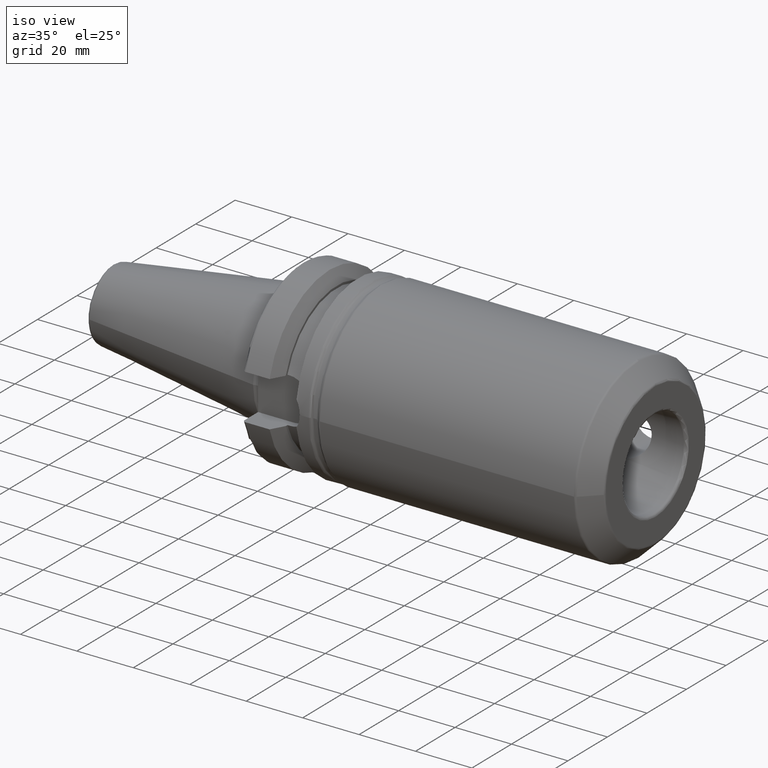
[diagram: clean part render]
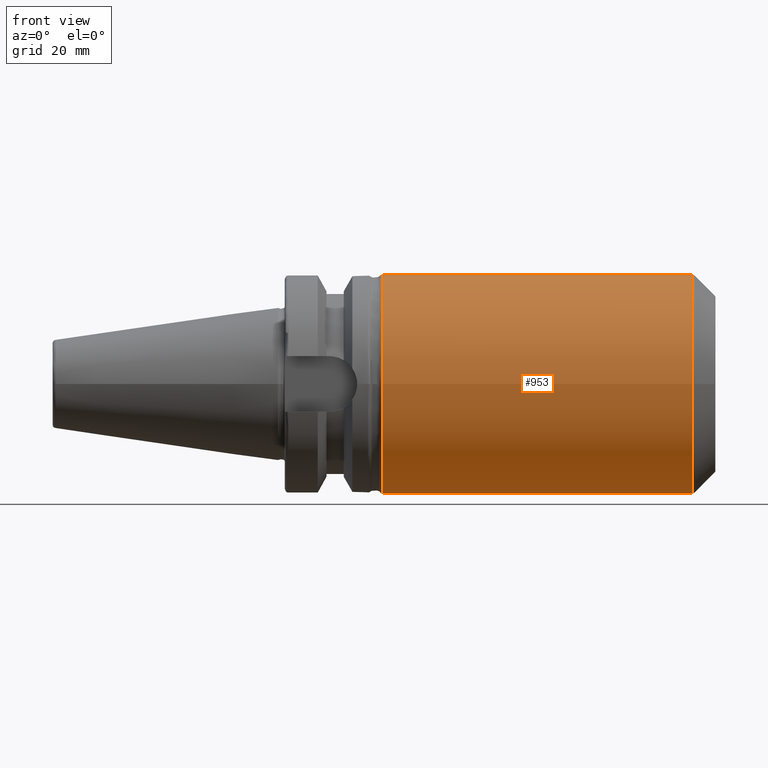
[diagram: tour spotlight — one face highlighted and labeled with its STEP entity id]
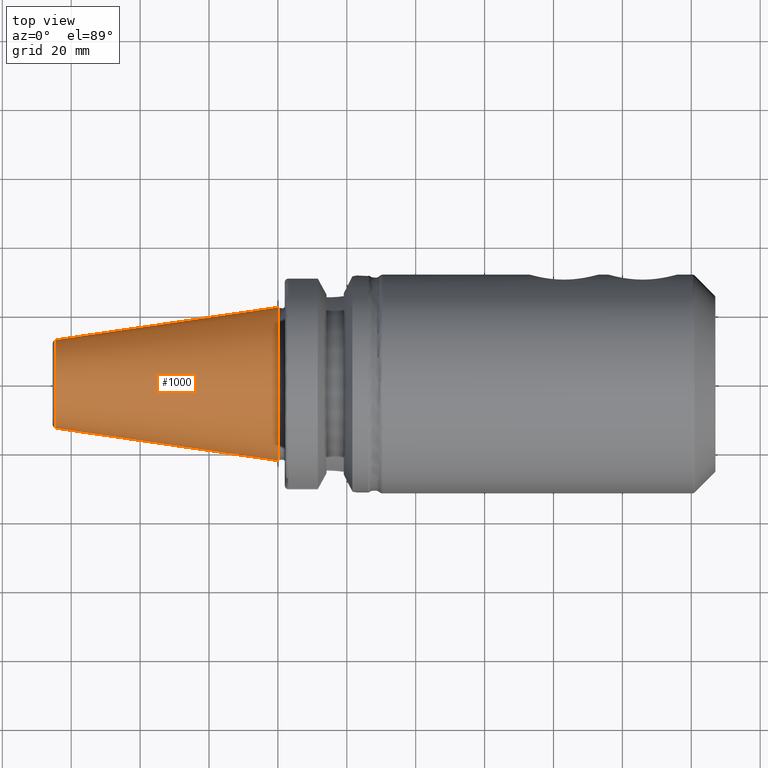
[diagram: tour spotlight — one face highlighted and labeled with its STEP entity id]
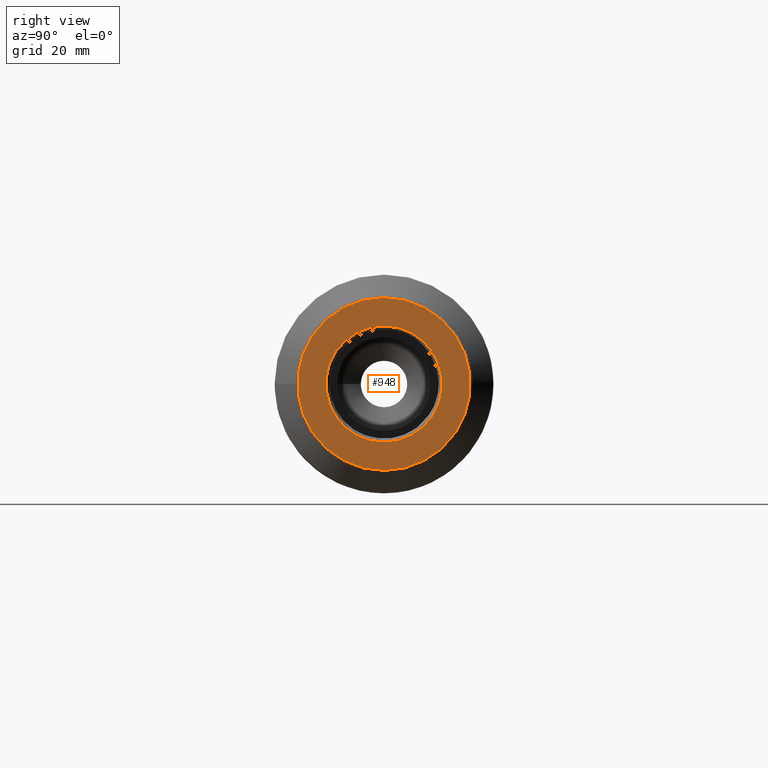
[diagram: tour spotlight — one face highlighted and labeled with its STEP entity id]
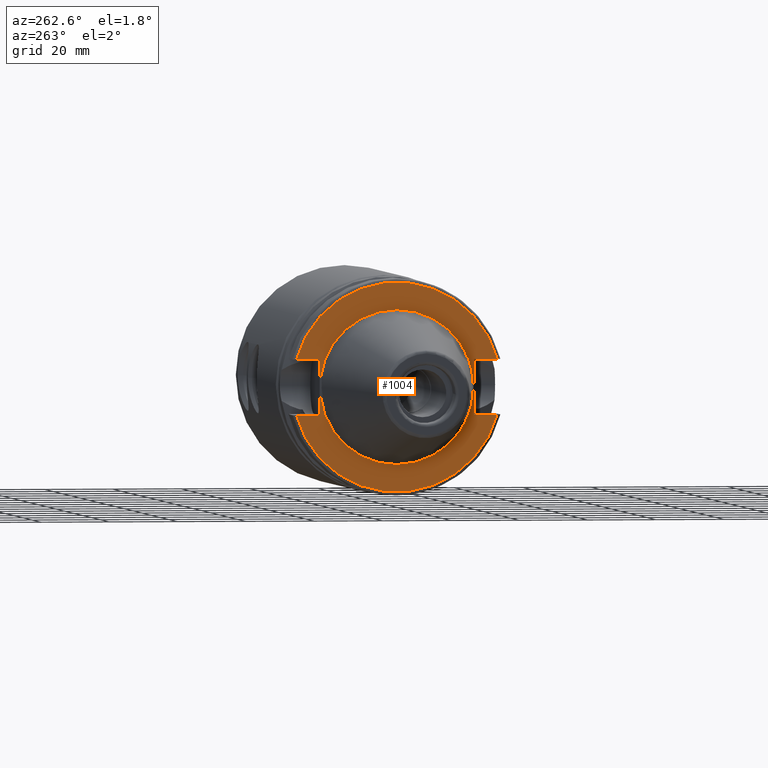
[diagram: tour spotlight — one face highlighted and labeled with its STEP entity id]
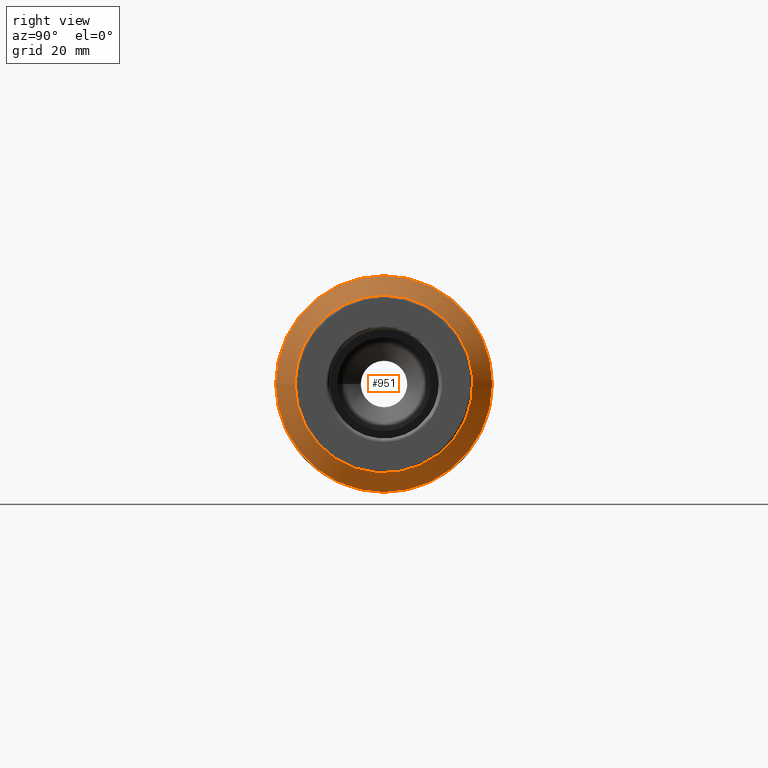
[diagram: tour spotlight — one face highlighted and labeled with its STEP entity id]
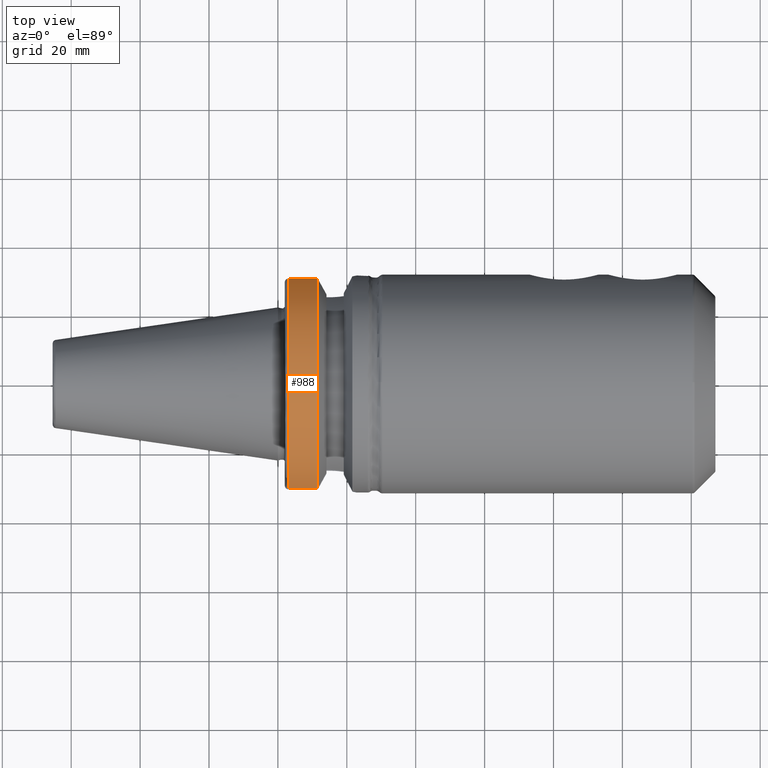
[diagram: tour spotlight — one face highlighted and labeled with its STEP entity id]
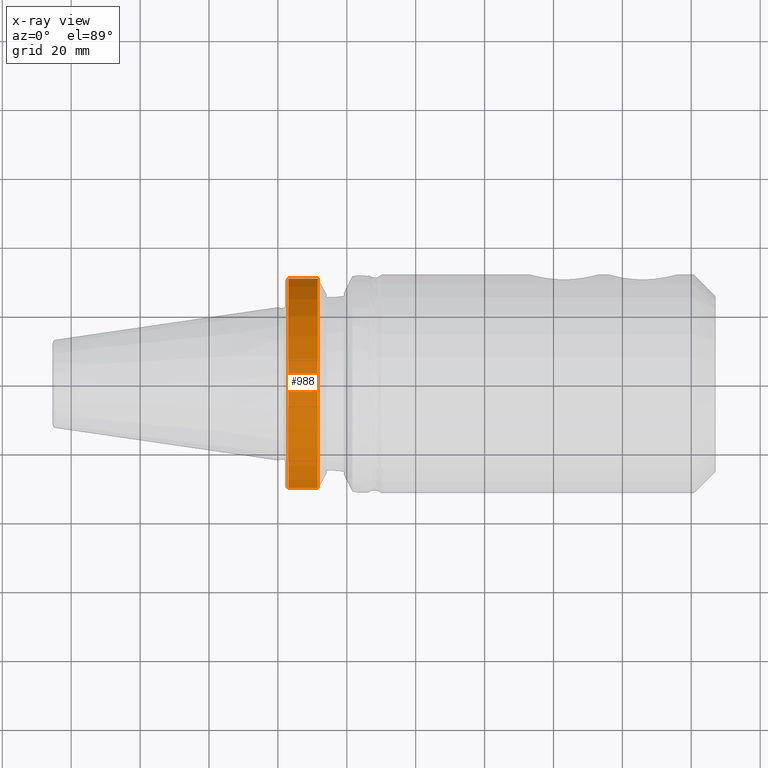
[diagram: x-ray of the same camera — body ghosted, this tour face saturated]
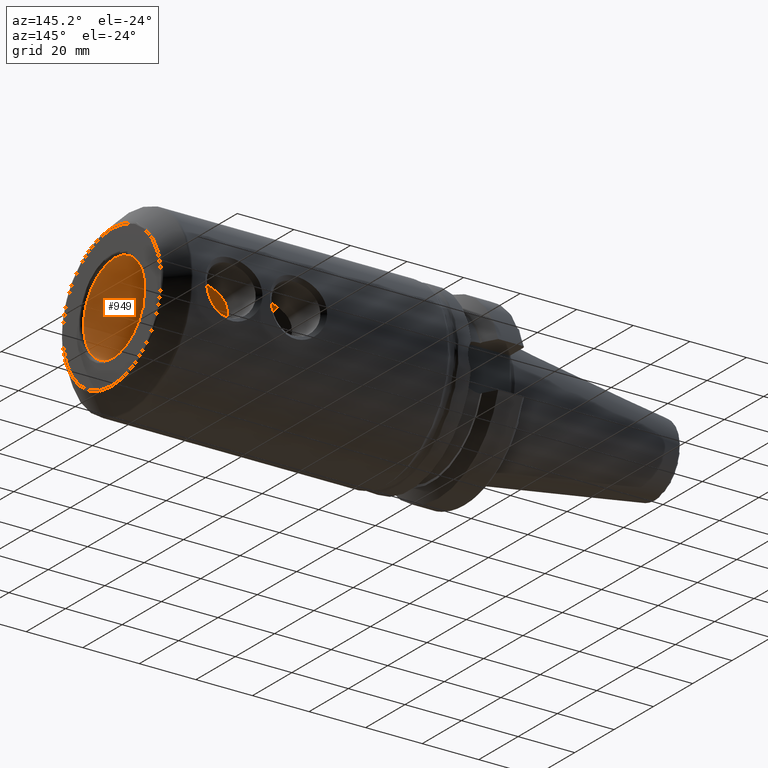
[diagram: tour spotlight — one face highlighted and labeled with its STEP entity id]
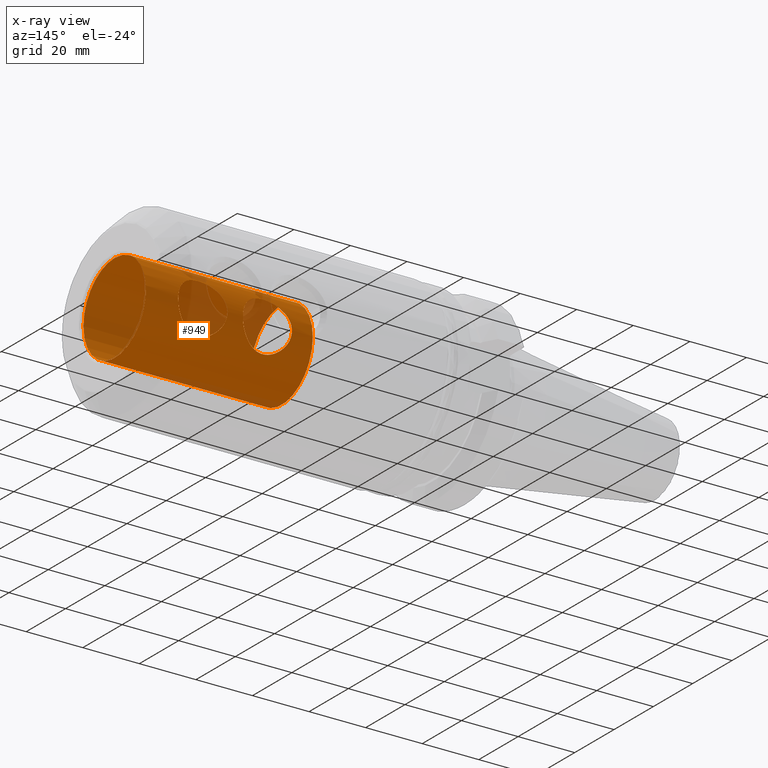
[diagram: x-ray of the same camera — body ghosted, this tour face saturated]
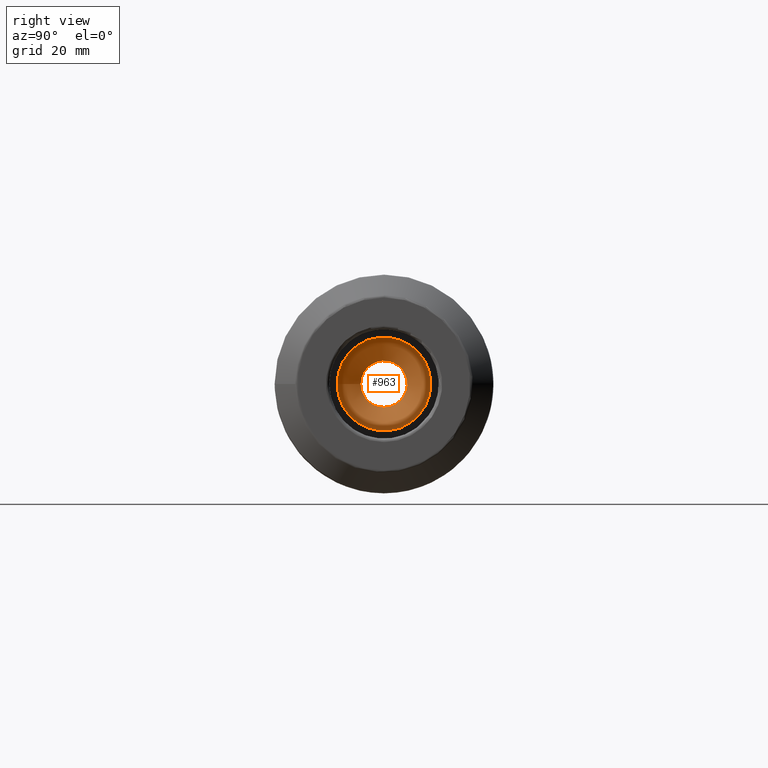
[diagram: tour spotlight — one face highlighted and labeled with its STEP entity id]
A machine part: a face-by-face anatomy tour. The part has 58 B-rep faces; the first image is the clean iso view, then the 8 largest visible faces are spotlighted one at a time (largest first), each with its STEP entity span.

Face 1 — front view, entity #953. In plain terms, the highlighted cylindrical surface (bore or boss wall) has radius 31.75 mm, axis along (1, 0, 0).
Definition (entity closure, byte-faithful):
#35=B_SPLINE_CURVE_WITH_KNOTS('',3,(#1578,#1579,#1580,#1581,#1582,#1583,
#1584,#1585,#1586,#1587,#1588,#1589,#1590,#1591,#1592,#1593,#1594,#1595,
#1596,#1597,#1598,#1599,#1600,#1601,#1602,#1603,#1604,#1605,#1606,#1607),
 .UNSPECIFIED.,.T.,.F.,(4,1,1,1,1,1,1,1,1,1,1,1,1,1,1,1,1,1,1,1,1,1,1,1,
1,1,1,4),(-9.18578536524083,-8.99832035778693,-8.81085535033304,-8.62339034287914,
-8.43592533542525,-8.24846032797135,-8.06099532051746,-7.68606530560967,
-7.49860029815578,-7.43611196233781,-7.31113529070188,-7.18615861906595,
-6.93620527579409,-6.68625193252223,-6.43629858925038,-6.18634524597852,
-5.99888023852462,-5.81141523107073,-5.62395022361683,-5.53021771988989,
-5.43648521616294,-5.06155520125515,-4.9678226975282,-4.68662518634736,
-4.49916017889347,-4.31169517143957,-4.12423016398568,-3.93676515653178),
 .UNSPECIFIED.);
#36=B_SPLINE_CURVE_WITH_KNOTS('',3,(#1609,#1610,#1611,#1612,#1613,#1614,
#1615,#1616,#1617,#1618,#1619,#1620,#1621,#1622,#1623,#1624,#1625,#1626,
#1627,#1628,#1629,#1630,#1631,#1632,#1633,#1634,#1635,#1636,#1637,#1638,
#1639,#1640,#1641,#1642,#1643,#1644,#1645),.UNSPECIFIED.,.T.,.F.,(4,1,1,
1,1,1,1,1,1,1,1,1,1,1,1,1,1,1,1,1,1,1,1,1,1,1,1,1,1,1,1,1,1,1,4),(-9.18578536524083,
-8.99832035778693,-8.81085535033304,-8.67025659474262,-8.62339034287914,
-8.43592533542525,-8.24846032797135,-8.10786157238093,-8.06099532051746,
-7.68606530560967,-7.49860029815578,-7.4517340462923,-7.43611196233781,
-7.31113529070188,-7.18615861906595,-6.99869361161206,-6.93620527579409,
-6.68625193252223,-6.43629858925038,-6.18634524597852,-6.0457464903881,
-5.99888023852462,-5.81141523107073,-5.62395022361683,-5.55365084582162,
-5.53021771988989,-5.43648521616294,-5.06155520125515,-5.01468894939168,
-4.87409019380125,-4.68662518634736,-4.49916017889347,-4.31169517143957,
-4.12423016398568,-3.93676515653178),.UNSPECIFIED.);
#56=LINE('',#1573,#106);
#106=VECTOR('',#1201,31.75);
#155=CYLINDRICAL_SURFACE('',#1048,31.75);
#175=FACE_BOUND('',#266,.T.);
#176=FACE_BOUND('',#267,.T.);
#204=FACE_OUTER_BOUND('',#265,.T.);
#265=EDGE_LOOP('',(#672,#673,#674,#675,#676,#677));
#266=EDGE_LOOP('',(#678));
#267=EDGE_LOOP('',(#679));
#336=CIRCLE('',#1046,31.75);
#337=CIRCLE('',#1047,31.75);
#338=CIRCLE('',#1049,31.75);
#339=CIRCLE('',#1050,31.75);
#408=VERTEX_POINT('',#1566);
#409=VERTEX_POINT('',#1568);
#410=VERTEX_POINT('',#1572);
#411=VERTEX_POINT('',#1574);
#412=VERTEX_POINT('',#1577);
#413=VERTEX_POINT('',#1608);
#509=EDGE_CURVE('',#408,#409,#336,.T.);
#510=EDGE_CURVE('',#409,#408,#337,.T.);
#511=EDGE_CURVE('',#409,#410,#56,.T.);
#512=EDGE_CURVE('',#410,#411,#338,.T.);
#513=EDGE_CURVE('',#411,#410,#339,.T.);
#514=EDGE_CURVE('',#412,#412,#35,.T.);
#515=EDGE_CURVE('',#413,#413,#36,.T.);
#672=ORIENTED_EDGE('',*,*,#510,.F.);
#673=ORIENTED_EDGE('',*,*,#511,.T.);
#674=ORIENTED_EDGE('',*,*,#512,.T.);
#675=ORIENTED_EDGE('',*,*,#513,.T.);
#676=ORIENTED_EDGE('',*,*,#511,.F.);
#677=ORIENTED_EDGE('',*,*,#509,.F.);
#678=ORIENTED_EDGE('',*,*,#514,.F.);
#679=ORIENTED_EDGE('',*,*,#515,.F.);
#953=ADVANCED_FACE('',(#204,#175,#176),#155,.T.);
#1046=AXIS2_PLACEMENT_3D('',#1569,#1195,#1196);
#1047=AXIS2_PLACEMENT_3D('',#1570,#1197,#1198);
#1048=AXIS2_PLACEMENT_3D('',#1571,#1199,#1200);
#1049=AXIS2_PLACEMENT_3D('',#1575,#1202,#1203);
#1050=AXIS2_PLACEMENT_3D('',#1576,#1204,#1205);
#1195=DIRECTION('center_axis',(1.,0.,0.));
#1196=DIRECTION('ref_axis',(0.,-1.,1.83697019872103E-16));
#1197=DIRECTION('center_axis',(1.,0.,0.));
#1198=DIRECTION('ref_axis',(0.,-1.,1.83697019872103E-16));
#1199=DIRECTION('center_axis',(1.,0.,0.));
#1200=DIRECTION('ref_axis',(0.,1.,0.));
#1201=DIRECTION('',(-1.,0.,0.));
#1202=DIRECTION('center_axis',(1.,0.,0.));
#1203=DIRECTION('ref_axis',(0.,0.,-1.));
#1204=DIRECTION('center_axis',(1.,0.,0.));
#1205=DIRECTION('ref_axis',(0.,0.,-1.));
#1566=CARTESIAN_POINT('',(120.335786437627,-3.88825358729285E-15,31.75));
#1568=CARTESIAN_POINT('',(120.335786437627,-31.75,-3.88825358729285E-15));
#1569=CARTESIAN_POINT('Origin',(120.335786437627,0.,0.));
#1570=CARTESIAN_POINT('Origin',(120.335786437627,0.,0.));
#1571=CARTESIAN_POINT('Origin',(75.5144247497998,0.,0.));
#1572=CARTESIAN_POINT('',(30.2788494995996,-31.75,-3.88825358729285E-15));
#1573=CARTESIAN_POINT('',(75.5144247497998,-31.75,-3.88825358729285E-15));
#1574=CARTESIAN_POINT('',(30.2788494995996,-3.88825358729285E-15,31.75));
#1575=CARTESIAN_POINT('Origin',(30.2788494995996,0.,0.));
#1576=CARTESIAN_POINT('Origin',(30.2788494995996,0.,0.));
#1577=CARTESIAN_POINT('',(93.1014,31.75,-3.60822483003176E-15));
#1578=CARTESIAN_POINT('Ctrl Pts',(93.1014,31.75,-3.60822483003176E-15));
#1579=CARTESIAN_POINT('Ctrl Pts',(93.1014,31.75,-0.725887433900856));
#1580=CARTESIAN_POINT('Ctrl Pts',(92.9381711716236,31.6979537520917,-2.23377312475092));
#1581=CARTESIAN_POINT('Ctrl Pts',(92.1774021035647,31.4648234933838,-4.41822769886708));
#1582=CARTESIAN_POINT('Ctrl Pts',(90.9357684879297,31.1248370065693,-6.34926134270825));
#1583=CARTESIAN_POINT('Ctrl Pts',(89.4181569596467,30.7745021036525,-7.85047648791336));
#1584=CARTESIAN_POINT('Ctrl Pts',(87.4867774584936,30.4289711146573,-9.08634220826083));
#1585=CARTESIAN_POINT('Ctrl Pts',(84.5248917988744,30.1078474592339,-10.0854412435445));
#1586=CARTESIAN_POINT('Ctrl Pts',(81.5532510316875,30.1065523171092,-10.0874000734182));
#1587=CARTESIAN_POINT('Ctrl Pts',(79.0854002546858,30.3758136666425,-9.25006044600684));
#1588=CARTESIAN_POINT('Ctrl Pts',(77.7428225672175,30.5814901773303,-8.54030902287875));
#1589=CARTESIAN_POINT('Ctrl Pts',(76.6973732861143,30.7750202093157,-7.82674271312173));
#1590=CARTESIAN_POINT('Ctrl Pts',(75.2952649251085,31.0849384467643,-6.52785558439746));
#1591=CARTESIAN_POINT('Ctrl Pts',(73.8408411861761,31.4790771364495,-4.46464560515806));
#1592=CARTESIAN_POINT('Ctrl Pts',(72.9350484555562,31.7636653838914,-1.45790003148445));
#1593=CARTESIAN_POINT('Ctrl Pts',(72.9427347026288,31.7614962211652,1.46149271845566));
#1594=CARTESIAN_POINT('Ctrl Pts',(73.760291756441,31.5044405963548,4.21073342710788));
#1595=CARTESIAN_POINT('Ctrl Pts',(75.1464238670462,31.1246485219377,6.34570226892574));
#1596=CARTESIAN_POINT('Ctrl Pts',(76.6609981540397,30.7745350064751,7.85256274173219));
#1597=CARTESIAN_POINT('Ctrl Pts',(78.2829959686246,30.4863363009777,8.8792347388501));
#1598=CARTESIAN_POINT('Ctrl Pts',(79.7001748756054,30.308785144483,9.4600710674026));
#1599=CARTESIAN_POINT('Ctrl Pts',(81.9366964942221,30.1071932376307,10.0878739188583));
#1600=CARTESIAN_POINT('Ctrl Pts',(84.146598582206,30.1086500979895,10.0819820216861));
#1601=CARTESIAN_POINT('Ctrl Pts',(87.1220964635659,30.3750776217307,9.25471611918956));
#1602=CARTESIAN_POINT('Ctrl Pts',(89.1627120000218,30.7142714620953,8.10777318023359));
#1603=CARTESIAN_POINT('Ctrl Pts',(90.9344327906629,31.1253368873177,6.34655539395759));
#1604=CARTESIAN_POINT('Ctrl Pts',(92.1767127398702,31.4644983282443,4.41940169557436));
#1605=CARTESIAN_POINT('Ctrl Pts',(92.9378509233726,31.6980854180413,2.23307157317192));
#1606=CARTESIAN_POINT('Ctrl Pts',(93.1014,31.75,0.725887433900861));
#1607=CARTESIAN_POINT('Ctrl Pts',(93.1014,31.75,3.19189119579733E-15));
#1608=CARTESIAN_POINT('',(115.9614,31.75,1.11022302462516E-15));
#1609=CARTESIAN_POINT('Ctrl Pts',(115.9614,31.75,1.11022302462516E-15));
#1610=CARTESIAN_POINT('Ctrl Pts',(115.9614,31.75,-0.725887433900809));
#1611=CARTESIAN_POINT('Ctrl Pts',(115.800985051694,31.6984676158907,-2.23242986340216));
#1612=CARTESIAN_POINT('Ctrl Pts',(115.097428417095,31.4835931381103,-4.23749006595236));
#1613=CARTESIAN_POINT('Ctrl Pts',(114.318196055277,31.2674022412671,-5.54231004739696));
#1614=CARTESIAN_POINT('Ctrl Pts',(113.414575445439,31.0369941612931,-6.72456994102667));
#1615=CARTESIAN_POINT('Ctrl Pts',(112.282645037106,30.7743477599183,-7.85250057276317));
#1616=CARTESIAN_POINT('Ctrl Pts',(110.499663158883,30.457523928531,-8.98182294152834));
#1617=CARTESIAN_POINT('Ctrl Pts',(109.061151632966,30.2886522785616,-9.52386650795776));
#1618=CARTESIAN_POINT('Ctrl Pts',(106.824765565766,30.1072463214181,-10.0857267727814));
#1619=CARTESIAN_POINT('Ctrl Pts',(104.411689598731,30.1074772926727,-10.0855558464161));
#1620=CARTESIAN_POINT('Ctrl Pts',(102.004444563404,30.3689195685667,-9.27263286937258));
#1621=CARTESIAN_POINT('Ctrl Pts',(101.10492401,30.5047181775085,-8.80545978296795));
#1622=CARTESIAN_POINT('Ctrl Pts',(100.443081558115,30.6105937067264,-8.43442568288057));
#1623=CARTESIAN_POINT('Ctrl Pts',(99.5556922673651,30.7754037505732,-7.82414125477449));
#1624=CARTESIAN_POINT('Ctrl Pts',(98.3305616386679,31.0461736748236,-6.69554292248122));
#1625=CARTESIAN_POINT('Ctrl Pts',(97.4317001783566,31.2802039789027,-5.49857532740163));
#1626=CARTESIAN_POINT('Ctrl Pts',(96.4724018890733,31.5511838089945,-3.71163282527654));
#1627=CARTESIAN_POINT('Ctrl Pts',(95.7975693630597,31.7626319968659,-1.46408732683826));
#1628=CARTESIAN_POINT('Ctrl Pts',(95.7995304112032,31.7622297720373,1.46646170545218));
#1629=CARTESIAN_POINT('Ctrl Pts',(96.5678382341555,31.5213659696317,4.02493345937102));
#1630=CARTESIAN_POINT('Ctrl Pts',(97.4816808515157,31.2673587216306,5.54137333284612));
#1631=CARTESIAN_POINT('Ctrl Pts',(98.3846284728316,31.0372548444234,6.72551526165564));
#1632=CARTESIAN_POINT('Ctrl Pts',(99.5191979484479,30.7741155673223,7.85136382362771));
#1633=CARTESIAN_POINT('Ctrl Pts',(101.056434694549,30.5007454282836,8.82910247155017));
#1634=CARTESIAN_POINT('Ctrl Pts',(102.113836281929,30.3642532933316,9.27806020325248));
#1635=CARTESIAN_POINT('Ctrl Pts',(102.834038144947,30.2834354991508,9.53957442495305));
#1636=CARTESIAN_POINT('Ctrl Pts',(104.788309336206,30.1075137526987,10.085597714631));
#1637=CARTESIAN_POINT('Ctrl Pts',(106.825069753193,30.1073579679559,10.086236237482));
#1638=CARTESIAN_POINT('Ctrl Pts',(109.060189410395,30.2885316135093,9.52367309841945));
#1639=CARTESIAN_POINT('Ctrl Pts',(110.500492425749,30.4577026392606,8.98160915734423));
#1640=CARTESIAN_POINT('Ctrl Pts',(112.279422924716,30.7737808321472,7.85406651067494));
#1641=CARTESIAN_POINT('Ctrl Pts',(113.797840765567,31.1256639704451,6.34534198134374));
#1642=CARTESIAN_POINT('Ctrl Pts',(115.038753488517,31.4648565363462,4.4183694966213));
#1643=CARTESIAN_POINT('Ctrl Pts',(115.797752962679,31.6980332174348,2.23285329766747));
#1644=CARTESIAN_POINT('Ctrl Pts',(115.9614,31.75,0.725887433900843));
#1645=CARTESIAN_POINT('Ctrl Pts',(115.9614,31.75,-1.94289029309402E-15));

Face 2 — top view, entity #1000. In plain terms, the highlighted conical surface has half-angle 8.297 deg.
Definition (entity closure, byte-faithful):
#29=CONICAL_SURFACE('',#1144,17.5186442890469,0.144812498238939);
#101=LINE('',#2315,#151);
#151=VECTOR('',#1440,17.5186442890469);
#251=FACE_OUTER_BOUND('',#318,.T.);
#318=EDGE_LOOP('',(#907,#908,#909,#910,#911));
#386=CIRCLE('',#1141,12.8122885780937);
#387=CIRCLE('',#1142,12.8122885780937);
#389=CIRCLE('',#1145,22.225);
#484=VERTEX_POINT('',#2307);
#485=VERTEX_POINT('',#2308);
#486=VERTEX_POINT('',#2313);
#627=EDGE_CURVE('',#484,#485,#386,.T.);
#628=EDGE_CURVE('',#485,#484,#387,.T.);
#630=EDGE_CURVE('',#486,#486,#389,.T.);
#631=EDGE_CURVE('',#486,#484,#101,.T.);
#907=ORIENTED_EDGE('',*,*,#630,.F.);
#908=ORIENTED_EDGE('',*,*,#631,.T.);
#909=ORIENTED_EDGE('',*,*,#627,.T.);
#910=ORIENTED_EDGE('',*,*,#628,.T.);
#911=ORIENTED_EDGE('',*,*,#631,.F.);
#1000=ADVANCED_FACE('',(#251),#29,.T.);
#1141=AXIS2_PLACEMENT_3D('',#2309,#1430,#1431);
#1142=AXIS2_PLACEMENT_3D('',#2310,#1432,#1433);
#1144=AXIS2_PLACEMENT_3D('',#2312,#1436,#1437);
#1145=AXIS2_PLACEMENT_3D('',#2314,#1438,#1439);
#1430=DIRECTION('center_axis',(1.,0.,0.));
#1431=DIRECTION('ref_axis',(0.,0.,-1.));
#1432=DIRECTION('center_axis',(1.,0.,0.));
#1433=DIRECTION('ref_axis',(0.,0.,-1.));
#1436=DIRECTION('center_axis',(1.,0.,0.));
#1437=DIRECTION('ref_axis',(0.,1.,0.));
#1438=DIRECTION('center_axis',(1.,0.,0.));
#1439=DIRECTION('ref_axis',(0.,0.,-1.));
#1440=DIRECTION('',(-0.989532981063282,0.144306893071729,1.76724974695192E-17));
#2307=CARTESIAN_POINT('',(-64.5443068930717,-12.8122885780937,-1.56905281969147E-15));
#2308=CARTESIAN_POINT('',(-64.5443068930717,-1.56905281969147E-15,12.8122885780937));
#2309=CARTESIAN_POINT('Origin',(-64.5443068930717,0.,0.));
#2310=CARTESIAN_POINT('Origin',(-64.5443068930717,0.,0.));
#2312=CARTESIAN_POINT('Origin',(-32.2721534465359,0.,0.));
#2313=CARTESIAN_POINT('',(4.44089209850063E-15,-22.225,-2.72177751110499E-15));
#2314=CARTESIAN_POINT('Origin',(1.11022302462516E-15,0.,0.));
#2315=CARTESIAN_POINT('',(-32.2721534465359,-17.5186442890469,-2.14541516539823E-15));

Face 3 — right view, entity #948. In plain terms, the highlighted planar face has unit normal (1, 0, 0).
Definition (entity closure, byte-faithful):
#172=FACE_BOUND('',#258,.T.);
#182=PLANE('',#1033);
#199=FACE_OUTER_BOUND('',#257,.T.);
#257=EDGE_LOOP('',(#644));
#258=EDGE_LOOP('',(#645));
#327=CIRCLE('',#1032,16.875);
#328=CIRCLE('',#1034,25.0857864376269);
#397=VERTEX_POINT('',#1467);
#398=VERTEX_POINT('',#1471);
#494=EDGE_CURVE('',#397,#397,#327,.T.);
#495=EDGE_CURVE('',#398,#398,#328,.T.);
#644=ORIENTED_EDGE('',*,*,#495,.F.);
#645=ORIENTED_EDGE('',*,*,#494,.F.);
#948=ADVANCED_FACE('',(#199,#172),#182,.T.);
#1032=AXIS2_PLACEMENT_3D('',#1469,#1165,#1166);
#1033=AXIS2_PLACEMENT_3D('',#1470,#1167,#1168);
#1034=AXIS2_PLACEMENT_3D('',#1472,#1169,#1170);
#1165=DIRECTION('center_axis',(1.,0.,0.));
#1166=DIRECTION('ref_axis',(0.,-1.,1.83697019872103E-16));
#1167=DIRECTION('center_axis',(1.,0.,0.));
#1168=DIRECTION('ref_axis',(0.,0.,-1.));
#1169=DIRECTION('center_axis',(-1.,0.,0.));
#1170=DIRECTION('ref_axis',(0.,-1.,1.83697019872103E-16));
#1467=CARTESIAN_POINT('',(127.,-2.06659147356116E-15,16.875));
#1469=CARTESIAN_POINT('Origin',(127.,0.,0.));
#1470=CARTESIAN_POINT('Origin',(127.,15.875,0.));
#1471=CARTESIAN_POINT('',(127.,-3.07212280649339E-15,25.0857864376269));
#1472=CARTESIAN_POINT('Origin',(127.,0.,0.));

Face 4 — auxiliary view, entity #1004. In plain terms, the highlighted planar face has unit normal (-1, 0, 0).
Definition (entity closure, byte-faithful):
#75=LINE('',#2135,#125);
#79=LINE('',#2143,#129);
#82=LINE('',#2163,#132);
#92=LINE('',#2243,#142);
#95=LINE('',#2264,#145);
#97=LINE('',#2267,#147);
#125=VECTOR('',#1304,10.);
#129=VECTOR('',#1310,10.);
#132=VECTOR('',#1315,10.);
#142=VECTOR('',#1359,10.);
#145=VECTOR('',#1364,10.);
#147=VECTOR('',#1368,10.);
#181=FACE_BOUND('',#323,.T.);
#197=PLANE('',#1154);
#255=FACE_OUTER_BOUND('',#322,.T.);
#322=EDGE_LOOP('',(#926,#927,#928,#929,#930,#931,#932,#933));
#323=EDGE_LOOP('',(#934));
#369=CIRCLE('',#1106,30.5);
#373=CIRCLE('',#1116,30.5);
#394=CIRCLE('',#1153,22.5);
#449=VERTEX_POINT('',#2123);
#450=VERTEX_POINT('',#2134);
#452=VERTEX_POINT('',#2140);
#453=VERTEX_POINT('',#2142);
#464=VERTEX_POINT('',#2203);
#471=VERTEX_POINT('',#2240);
#472=VERTEX_POINT('',#2242);
#476=VERTEX_POINT('',#2263);
#490=VERTEX_POINT('',#2327);
#568=EDGE_CURVE('',#450,#449,#75,.T.);
#572=EDGE_CURVE('',#453,#452,#79,.T.);
#577=EDGE_CURVE('',#452,#450,#82,.T.);
#591=EDGE_CURVE('',#453,#464,#369,.T.);
#601=EDGE_CURVE('',#472,#471,#92,.T.);
#606=EDGE_CURVE('',#476,#464,#95,.T.);
#608=EDGE_CURVE('',#471,#476,#97,.T.);
#611=EDGE_CURVE('',#472,#449,#373,.T.);
#638=EDGE_CURVE('',#490,#490,#394,.T.);
#926=ORIENTED_EDGE('',*,*,#568,.T.);
#927=ORIENTED_EDGE('',*,*,#611,.F.);
#928=ORIENTED_EDGE('',*,*,#601,.T.);
#929=ORIENTED_EDGE('',*,*,#608,.T.);
#930=ORIENTED_EDGE('',*,*,#606,.T.);
#931=ORIENTED_EDGE('',*,*,#591,.F.);
#932=ORIENTED_EDGE('',*,*,#572,.T.);
#933=ORIENTED_EDGE('',*,*,#577,.T.);
#934=ORIENTED_EDGE('',*,*,#638,.T.);
#1004=ADVANCED_FACE('',(#255,#181),#197,.T.);
#1106=AXIS2_PLACEMENT_3D('',#2204,#1346,#1347);
#1116=AXIS2_PLACEMENT_3D('',#2272,#1377,#1378);
#1153=AXIS2_PLACEMENT_3D('',#2329,#1457,#1458);
#1154=AXIS2_PLACEMENT_3D('',#2330,#1459,#1460);
#1304=DIRECTION('',(0.,-1.,0.));
#1310=DIRECTION('',(0.,1.,0.));
#1315=DIRECTION('',(0.,0.,1.));
#1346=DIRECTION('center_axis',(1.,0.,0.));
#1347=DIRECTION('ref_axis',(0.,0.,-1.));
#1359=DIRECTION('',(0.,-1.,0.));
#1364=DIRECTION('',(0.,1.,0.));
#1368=DIRECTION('',(0.,0.,-1.));
#1377=DIRECTION('center_axis',(1.,0.,0.));
#1378=DIRECTION('ref_axis',(0.,0.,-1.));
#1457=DIRECTION('center_axis',(1.,0.,0.));
#1458=DIRECTION('ref_axis',(0.,0.,-1.));
#1459=DIRECTION('center_axis',(-1.,0.,0.));
#1460=DIRECTION('ref_axis',(0.,0.,1.));
#2123=CARTESIAN_POINT('',(1.99999999999999,-29.4184890842477,8.05));
#2134=CARTESIAN_POINT('',(1.99999999999999,-22.6,8.05));
#2135=CARTESIAN_POINT('',(1.99999999999999,3.95,8.05));
#2140=CARTESIAN_POINT('',(1.99999999999999,-22.6,-8.05));
#2142=CARTESIAN_POINT('',(1.99999999999999,-29.4184890842477,-8.05));
#2143=CARTESIAN_POINT('',(1.99999999999999,3.95,-8.05));
#2163=CARTESIAN_POINT('',(1.99999999999999,-22.6,0.));
#2203=CARTESIAN_POINT('',(1.99999999999999,29.4184890842477,-8.05));
#2204=CARTESIAN_POINT('Origin',(1.99999999999999,0.,0.));
#2240=CARTESIAN_POINT('',(1.99999999999999,22.6,8.05));
#2242=CARTESIAN_POINT('',(1.99999999999999,29.4184890842477,8.05));
#2243=CARTESIAN_POINT('',(1.99999999999999,26.55,8.05));
#2263=CARTESIAN_POINT('',(1.99999999999999,22.6,-8.05));
#2264=CARTESIAN_POINT('',(1.99999999999999,26.55,-8.05));
#2267=CARTESIAN_POINT('',(1.99999999999999,22.6,0.));
#2272=CARTESIAN_POINT('Origin',(1.99999999999999,0.,0.));
#2327=CARTESIAN_POINT('',(2.,-2.75545529808154E-15,22.5));
#2329=CARTESIAN_POINT('Origin',(2.,0.,0.));
#2330=CARTESIAN_POINT('Origin',(1.99999999999999,30.5,0.));

Face 5 — right view, entity #951. In plain terms, the highlighted conical surface has half-angle 45 deg.
Definition (entity closure, byte-faithful):
#21=CONICAL_SURFACE('',#1041,28.625,0.78539816339745);
#55=LINE('',#1561,#105);
#105=VECTOR('',#1186,28.625);
#202=FACE_OUTER_BOUND('',#263,.T.);
#263=EDGE_LOOP('',(#660,#661,#662,#663,#664,#665));
#331=CIRCLE('',#1039,25.7928932188135);
#332=CIRCLE('',#1040,25.7928932188135);
#333=CIRCLE('',#1042,31.4571067811866);
#334=CIRCLE('',#1043,31.4571067811866);
#404=VERTEX_POINT('',#1554);
#405=VERTEX_POINT('',#1556);
#406=VERTEX_POINT('',#1560);
#407=VERTEX_POINT('',#1562);
#503=EDGE_CURVE('',#404,#405,#331,.T.);
#504=EDGE_CURVE('',#405,#404,#332,.T.);
#505=EDGE_CURVE('',#405,#406,#55,.T.);
#506=EDGE_CURVE('',#407,#406,#333,.T.);
#507=EDGE_CURVE('',#406,#407,#334,.T.);
#660=ORIENTED_EDGE('',*,*,#504,.F.);
#661=ORIENTED_EDGE('',*,*,#505,.T.);
#662=ORIENTED_EDGE('',*,*,#506,.F.);
#663=ORIENTED_EDGE('',*,*,#507,.F.);
#664=ORIENTED_EDGE('',*,*,#505,.F.);
#665=ORIENTED_EDGE('',*,*,#503,.F.);
#951=ADVANCED_FACE('',(#202),#21,.T.);
#1039=AXIS2_PLACEMENT_3D('',#1557,#1180,#1181);
#1040=AXIS2_PLACEMENT_3D('',#1558,#1182,#1183);
#1041=AXIS2_PLACEMENT_3D('',#1559,#1184,#1185);
#1042=AXIS2_PLACEMENT_3D('',#1563,#1187,#1188);
#1043=AXIS2_PLACEMENT_3D('',#1564,#1189,#1190);
#1180=DIRECTION('center_axis',(1.,0.,0.));
#1181=DIRECTION('ref_axis',(0.,-1.,3.06161699786838E-17));
#1182=DIRECTION('center_axis',(1.,0.,0.));
#1183=DIRECTION('ref_axis',(0.,-1.,3.06161699786838E-17));
#1184=DIRECTION('center_axis',(-1.,0.,0.));
#1185=DIRECTION('ref_axis',(0.,1.,0.));
#1186=DIRECTION('',(-0.707106781186546,-0.707106781186549,-8.65956056235495E-17));
#1187=DIRECTION('center_axis',(-1.,0.,0.));
#1188=DIRECTION('ref_axis',(0.,-1.,3.06161699786838E-17));
#1189=DIRECTION('center_axis',(-1.,0.,0.));
#1190=DIRECTION('ref_axis',(0.,-1.,3.06161699786838E-17));
#1554=CARTESIAN_POINT('',(126.707106781187,-3.15871841211694E-15,25.7928932188135));
#1556=CARTESIAN_POINT('',(126.707106781187,-25.7928932188135,-3.15871841211694E-15));
#1557=CARTESIAN_POINT('Origin',(126.707106781187,0.,-3.94839801514617E-15));
#1558=CARTESIAN_POINT('Origin',(126.707106781187,0.,-3.94839801514617E-15));
#1559=CARTESIAN_POINT('Origin',(123.875,0.,0.));
#1560=CARTESIAN_POINT('',(121.042893218813,-31.4571067811866,-3.85238451300166E-15));
#1561=CARTESIAN_POINT('',(123.875,-28.625,-3.5055514625593E-15));
#1562=CARTESIAN_POINT('',(121.042893218813,-3.85238451300166E-15,31.4571067811866));
#1563=CARTESIAN_POINT('Origin',(121.042893218813,0.,-4.81548064125208E-15));
#1564=CARTESIAN_POINT('Origin',(121.042893218813,0.,-4.81548064125208E-15));

Face 6 — top view, entity #988. An x-ray twin of the same camera follows (body ghosted, this face saturated) — the face is partly hidden behind the body. In plain terms, the highlighted cylindrical surface (partial cylindrical patch) has radius 31.5 mm, axis along (1, 0, 0).
Definition (entity closure, byte-faithful):
#74=LINE('',#2122,#124);
#93=LINE('',#2256,#143);
#124=VECTOR('',#1303,10.);
#143=VECTOR('',#1360,10.);
#167=CYLINDRICAL_SURFACE('',#1117,31.5);
#239=FACE_OUTER_BOUND('',#304,.T.);
#304=EDGE_LOOP('',(#858,#859,#860,#861));
#372=CIRCLE('',#1115,31.5);
#374=CIRCLE('',#1118,31.5000000000001);
#447=VERTEX_POINT('',#2117);
#448=VERTEX_POINT('',#2121);
#473=VERTEX_POINT('',#2244);
#474=VERTEX_POINT('',#2255);
#566=EDGE_CURVE('',#448,#447,#74,.T.);
#603=EDGE_CURVE('',#474,#473,#93,.T.);
#610=EDGE_CURVE('',#473,#448,#372,.T.);
#612=EDGE_CURVE('',#474,#447,#374,.T.);
#858=ORIENTED_EDGE('',*,*,#566,.T.);
#859=ORIENTED_EDGE('',*,*,#612,.F.);
#860=ORIENTED_EDGE('',*,*,#603,.T.);
#861=ORIENTED_EDGE('',*,*,#610,.T.);
#988=ADVANCED_FACE('',(#239),#167,.T.);
#1115=AXIS2_PLACEMENT_3D('',#2271,#1375,#1376);
#1117=AXIS2_PLACEMENT_3D('',#2273,#1379,#1380);
#1118=AXIS2_PLACEMENT_3D('',#2274,#1381,#1382);
#1303=DIRECTION('',(1.,0.,0.));
#1360=DIRECTION('',(-1.,0.,0.));
#1375=DIRECTION('center_axis',(1.,0.,0.));
#1376=DIRECTION('ref_axis',(0.,0.,-1.));
#1379=DIRECTION('center_axis',(1.,0.,0.));
#1380=DIRECTION('ref_axis',(0.,1.,0.));
#1381=DIRECTION('center_axis',(1.,0.,0.));
#1382=DIRECTION('ref_axis',(0.,0.,-1.));
#2117=CARTESIAN_POINT('',(11.5690363073382,-30.4540227227866,8.05));
#2121=CARTESIAN_POINT('',(2.99999999999999,-30.4540227227866,8.05));
#2122=CARTESIAN_POINT('',(7.28451815366907,-30.4540227227866,8.05));
#2244=CARTESIAN_POINT('',(2.99999999999999,30.4540227227866,8.05));
#2255=CARTESIAN_POINT('',(11.5690363073382,30.4540227227866,8.05));
#2256=CARTESIAN_POINT('',(7.28451815366907,30.4540227227866,8.05));
#2271=CARTESIAN_POINT('Origin',(2.99999999999999,0.,0.));
#2273=CARTESIAN_POINT('Origin',(7.28451815366907,0.,0.));
#2274=CARTESIAN_POINT('Origin',(11.5690363073382,0.,0.));

Face 7 — auxiliary view, entity #949. An x-ray twin of the same camera follows (body ghosted, this face saturated) — the face is partly hidden behind the body. In plain terms, the highlighted cylindrical surface (bore or boss wall) has radius 15.875 mm, axis along (1, 0, 0).
Definition (entity closure, byte-faithful):
#31=B_SPLINE_CURVE_WITH_KNOTS('',3,(#1479,#1480,#1481,#1482,#1483,#1484,
#1485,#1486,#1487,#1488),.UNSPECIFIED.,.F.,.F.,(4,2,2,2,4),(0.,0.335135655520429,
0.670271311040858,1.00403758708355,1.33780386312625),.UNSPECIFIED.);
#32=B_SPLINE_CURVE_WITH_KNOTS('',3,(#1489,#1490,#1491,#1492,#1493,#1494,
#1495,#1496,#1497,#1498,#1499,#1500,#1501,#1502,#1503,#1504,#1505,#1506,
#1507,#1508,#1509,#1510,#1511,#1512,#1513,#1514),.UNSPECIFIED.,.F.,.F.,
(4,2,2,2,2,2,2,2,2,2,2,2,4),(1.33780386312625,1.67157013916894,2.00533641521164,
2.34047207073207,2.6756077262525,3.01074338177292,3.34587903729335,3.67964531333605,
4.01341158937874,4.34717786542144,4.68094414146413,5.01607979698456,5.35121545250499),
 .UNSPECIFIED.);
#33=B_SPLINE_CURVE_WITH_KNOTS('',3,(#1517,#1518,#1519,#1520,#1521,#1522,
#1523,#1524,#1525,#1526),.UNSPECIFIED.,.F.,.F.,(4,2,2,2,4),(0.,0.335135655520429,
0.670271311040858,1.00403758708355,1.33780386312625),.UNSPECIFIED.);
#34=B_SPLINE_CURVE_WITH_KNOTS('',3,(#1527,#1528,#1529,#1530,#1531,#1532,
#1533,#1534,#1535,#1536,#1537,#1538,#1539,#1540,#1541,#1542,#1543,#1544,
#1545,#1546,#1547,#1548,#1549,#1550,#1551,#1552),.UNSPECIFIED.,.F.,.F.,
(4,2,2,2,2,2,2,2,2,2,2,2,4),(1.33780386312625,1.67157013916894,2.00533641521164,
2.34047207073207,2.6756077262525,3.01074338177292,3.34587903729335,3.67964531333605,
4.01341158937874,4.34717786542144,4.68094414146413,5.01607979698456,5.35121545250499),
 .UNSPECIFIED.);
#54=LINE('',#1475,#104);
#104=VECTOR('',#1173,15.875);
#154=CYLINDRICAL_SURFACE('',#1035,15.875);
#173=FACE_BOUND('',#260,.T.);
#174=FACE_BOUND('',#261,.T.);
#200=FACE_OUTER_BOUND('',#259,.T.);
#259=EDGE_LOOP('',(#646,#647,#648,#649,#650));
#260=EDGE_LOOP('',(#651,#652));
#261=EDGE_LOOP('',(#653,#654));
#324=CIRCLE('',#1029,15.875);
#325=CIRCLE('',#1030,15.875);
#329=CIRCLE('',#1036,15.875);
#395=VERTEX_POINT('',#1463);
#396=VERTEX_POINT('',#1464);
#399=VERTEX_POINT('',#1474);
#400=VERTEX_POINT('',#1477);
#401=VERTEX_POINT('',#1478);
#402=VERTEX_POINT('',#1515);
#403=VERTEX_POINT('',#1516);
#491=EDGE_CURVE('',#395,#396,#324,.T.);
#492=EDGE_CURVE('',#396,#395,#325,.T.);
#496=EDGE_CURVE('',#396,#399,#54,.T.);
#497=EDGE_CURVE('',#399,#399,#329,.T.);
#498=EDGE_CURVE('',#400,#401,#31,.T.);
#499=EDGE_CURVE('',#401,#400,#32,.T.);
#500=EDGE_CURVE('',#402,#403,#33,.T.);
#501=EDGE_CURVE('',#403,#402,#34,.T.);
#646=ORIENTED_EDGE('',*,*,#491,.F.);
#647=ORIENTED_EDGE('',*,*,#492,.F.);
#648=ORIENTED_EDGE('',*,*,#496,.T.);
#649=ORIENTED_EDGE('',*,*,#497,.F.);
#650=ORIENTED_EDGE('',*,*,#496,.F.);
#651=ORIENTED_EDGE('',*,*,#498,.T.);
#652=ORIENTED_EDGE('',*,*,#499,.T.);
#653=ORIENTED_EDGE('',*,*,#500,.T.);
#654=ORIENTED_EDGE('',*,*,#501,.T.);
#949=ADVANCED_FACE('',(#200,#173,#174),#154,.F.);
#1029=AXIS2_PLACEMENT_3D('',#1465,#1159,#1160);
#1030=AXIS2_PLACEMENT_3D('',#1466,#1161,#1162);
#1035=AXIS2_PLACEMENT_3D('',#1473,#1171,#1172);
#1036=AXIS2_PLACEMENT_3D('',#1476,#1174,#1175);
#1159=DIRECTION('center_axis',(-1.,0.,0.));
#1160=DIRECTION('ref_axis',(0.,-1.,1.83697019872103E-16));
#1161=DIRECTION('center_axis',(-1.,0.,0.));
#1162=DIRECTION('ref_axis',(0.,-1.,1.83697019872103E-16));
#1171=DIRECTION('center_axis',(1.,0.,0.));
#1172=DIRECTION('ref_axis',(0.,1.,0.));
#1173=DIRECTION('',(-1.,0.,0.));
#1174=DIRECTION('center_axis',(1.,0.,0.));
#1175=DIRECTION('ref_axis',(0.,0.,-1.));
#1463=CARTESIAN_POINT('',(126.,-1.94412679364643E-15,15.875));
#1464=CARTESIAN_POINT('',(126.,-15.875,-1.94412679364643E-15));
#1465=CARTESIAN_POINT('Origin',(126.,0.,0.));
#1466=CARTESIAN_POINT('Origin',(126.,0.,0.));
#1473=CARTESIAN_POINT('Origin',(97.,0.,0.));
#1474=CARTESIAN_POINT('',(67.,-15.875,-1.94412679364643E-15));
#1475=CARTESIAN_POINT('',(97.,-15.875,-1.94412679364643E-15));
#1476=CARTESIAN_POINT('Origin',(67.,0.,0.));
#1477=CARTESIAN_POINT('',(105.9,13.3039759109824,8.6614));
#1478=CARTESIAN_POINT('',(114.5614,15.875,-4.46352160332383E-17));
#1479=CARTESIAN_POINT('Ctrl Pts',(105.9,13.3039759109824,8.6614));
#1480=CARTESIAN_POINT('Ctrl Pts',(107.017118851735,13.3039759109824,8.6614));
#1481=CARTESIAN_POINT('Ctrl Pts',(108.186117993075,13.4596424228963,8.43319660129859));
#1482=CARTESIAN_POINT('Ctrl Pts',(110.309610528737,13.9778479980302,7.54324290825645));
#1483=CARTESIAN_POINT('Ctrl Pts',(111.267033956156,14.3292484464553,6.88203539298256));
#1484=CARTESIAN_POINT('Ctrl Pts',(112.778940210715,14.9614834588893,5.37012913842324));
#1485=CARTESIAN_POINT('Ctrl Pts',(113.442371816941,15.2884598474176,4.41173993002518));
#1486=CARTESIAN_POINT('Ctrl Pts',(114.334189012433,15.7475449872049,2.28369910750552));
#1487=CARTESIAN_POINT('Ctrl Pts',(114.5614,15.875,1.11255425347565));
#1488=CARTESIAN_POINT('Ctrl Pts',(114.5614,15.875,8.32667268468867E-16));
#1489=CARTESIAN_POINT('Ctrl Pts',(114.5614,15.875,9.71445146547012E-16));
#1490=CARTESIAN_POINT('Ctrl Pts',(114.5614,15.875,-1.11255425347565));
#1491=CARTESIAN_POINT('Ctrl Pts',(114.334189012434,15.7475449872049,-2.2836991075055));
#1492=CARTESIAN_POINT('Ctrl Pts',(113.442371816941,15.2884598474176,-4.41173993002516));
#1493=CARTESIAN_POINT('Ctrl Pts',(112.778940210715,14.9614834588893,-5.37012913842324));
#1494=CARTESIAN_POINT('Ctrl Pts',(111.267033956156,14.3292484464553,-6.88203539298256));
#1495=CARTESIAN_POINT('Ctrl Pts',(110.309610528737,13.9778479980302,-7.54324290825645));
#1496=CARTESIAN_POINT('Ctrl Pts',(108.186117993075,13.4596424228963,-8.43319660129859));
#1497=CARTESIAN_POINT('Ctrl Pts',(107.017118851735,13.3039759109824,-8.6614));
#1498=CARTESIAN_POINT('Ctrl Pts',(104.782881148265,13.3039759109824,-8.6614));
#1499=CARTESIAN_POINT('Ctrl Pts',(103.613882006925,13.4596424228963,-8.43319660129859));
#1500=CARTESIAN_POINT('Ctrl Pts',(101.490389471263,13.9778479980302,-7.54324290825645));
#1501=CARTESIAN_POINT('Ctrl Pts',(100.532966043844,14.3292484464553,-6.88203539298257));
#1502=CARTESIAN_POINT('Ctrl Pts',(99.0210597892849,14.9614834588893,-5.37012913842324));
#1503=CARTESIAN_POINT('Ctrl Pts',(98.3576281830587,15.2884598474176,-4.41173993002518));
#1504=CARTESIAN_POINT('Ctrl Pts',(97.4658109875665,15.7475449872049,-2.28369910750552));
#1505=CARTESIAN_POINT('Ctrl Pts',(97.2386,15.875,-1.11255425347565));
#1506=CARTESIAN_POINT('Ctrl Pts',(97.2386,15.875,1.11255425347565));
#1507=CARTESIAN_POINT('Ctrl Pts',(97.4658109875665,15.7475449872049,2.28369910750552));
#1508=CARTESIAN_POINT('Ctrl Pts',(98.3576281830587,15.2884598474176,4.41173993002518));
#1509=CARTESIAN_POINT('Ctrl Pts',(99.0210597892849,14.9614834588893,5.37012913842324));
#1510=CARTESIAN_POINT('Ctrl Pts',(100.532966043844,14.3292484464553,6.88203539298256));
#1511=CARTESIAN_POINT('Ctrl Pts',(101.490389471263,13.9778479980302,7.54324290825645));
#1512=CARTESIAN_POINT('Ctrl Pts',(103.613882006925,13.4596424228963,8.43319660129859));
#1513=CARTESIAN_POINT('Ctrl Pts',(104.782881148265,13.3039759109824,8.6614));
#1514=CARTESIAN_POINT('Ctrl Pts',(105.9,13.3039759109824,8.6614));
#1515=CARTESIAN_POINT('',(83.04,13.3039759109824,8.6614));
#1516=CARTESIAN_POINT('',(91.7014,15.875,-5.30357789306744E-16));
#1517=CARTESIAN_POINT('Ctrl Pts',(83.04,13.3039759109824,8.6614));
#1518=CARTESIAN_POINT('Ctrl Pts',(84.1571188517347,13.3039759109824,8.6614));
#1519=CARTESIAN_POINT('Ctrl Pts',(85.3261179930749,13.4596424228963,8.43319660129859));
#1520=CARTESIAN_POINT('Ctrl Pts',(87.4496105287369,13.9778479980302,7.54324290825644));
#1521=CARTESIAN_POINT('Ctrl Pts',(88.4070339561558,14.3292484464553,6.88203539298256));
#1522=CARTESIAN_POINT('Ctrl Pts',(89.9189402107151,14.9614834588893,5.37012913842324));
#1523=CARTESIAN_POINT('Ctrl Pts',(90.5823718169413,15.2884598474176,4.41173993002517));
#1524=CARTESIAN_POINT('Ctrl Pts',(91.4741890124335,15.7475449872049,2.28369910750552));
#1525=CARTESIAN_POINT('Ctrl Pts',(91.7014,15.875,1.11255425347565));
#1526=CARTESIAN_POINT('Ctrl Pts',(91.7014,15.875,8.32667268468867E-16));
#1527=CARTESIAN_POINT('Ctrl Pts',(91.7014,15.875,0.));
#1528=CARTESIAN_POINT('Ctrl Pts',(91.7014,15.875,-1.11255425347565));
#1529=CARTESIAN_POINT('Ctrl Pts',(91.4741890124335,15.7475449872049,-2.28369910750551));
#1530=CARTESIAN_POINT('Ctrl Pts',(90.5823718169413,15.2884598474176,-4.41173993002517));
#1531=CARTESIAN_POINT('Ctrl Pts',(89.9189402107151,14.9614834588893,-5.37012913842324));
#1532=CARTESIAN_POINT('Ctrl Pts',(88.4070339561558,14.3292484464553,-6.88203539298256));
#1533=CARTESIAN_POINT('Ctrl Pts',(87.4496105287369,13.9778479980302,-7.54324290825644));
#1534=CARTESIAN_POINT('Ctrl Pts',(85.3261179930749,13.4596424228963,-8.43319660129859));
#1535=CARTESIAN_POINT('Ctrl Pts',(84.1571188517348,13.3039759109824,-8.6614));
#1536=CARTESIAN_POINT('Ctrl Pts',(81.9228811482652,13.3039759109824,-8.6614));
#1537=CARTESIAN_POINT('Ctrl Pts',(80.7538820069251,13.4596424228963,-8.43319660129859));
#1538=CARTESIAN_POINT('Ctrl Pts',(78.630389471263,13.9778479980302,-7.54324290825644));
#1539=CARTESIAN_POINT('Ctrl Pts',(77.6729660438442,14.3292484464553,-6.88203539298257));
#1540=CARTESIAN_POINT('Ctrl Pts',(76.1610597892849,14.9614834588893,-5.37012913842324));
#1541=CARTESIAN_POINT('Ctrl Pts',(75.4976281830587,15.2884598474176,-4.41173993002517));
#1542=CARTESIAN_POINT('Ctrl Pts',(74.6058109875665,15.7475449872049,-2.28369910750552));
#1543=CARTESIAN_POINT('Ctrl Pts',(74.3786,15.875,-1.11255425347565));
#1544=CARTESIAN_POINT('Ctrl Pts',(74.3786,15.875,1.11255425347565));
#1545=CARTESIAN_POINT('Ctrl Pts',(74.6058109875665,15.7475449872049,2.28369910750551));
#1546=CARTESIAN_POINT('Ctrl Pts',(75.4976281830587,15.2884598474176,4.41173993002517));
#1547=CARTESIAN_POINT('Ctrl Pts',(76.1610597892849,14.9614834588893,5.37012913842324));
#1548=CARTESIAN_POINT('Ctrl Pts',(77.6729660438442,14.3292484464553,6.88203539298256));
#1549=CARTESIAN_POINT('Ctrl Pts',(78.630389471263,13.9778479980302,7.54324290825644));
#1550=CARTESIAN_POINT('Ctrl Pts',(80.7538820069251,13.4596424228963,8.43319660129859));
#1551=CARTESIAN_POINT('Ctrl Pts',(81.9228811482652,13.3039759109824,8.6614));
#1552=CARTESIAN_POINT('Ctrl Pts',(83.04,13.3039759109824,8.6614));

Face 8 — right view, entity #963. In plain terms, the highlighted conical surface has half-angle 60 deg.
Definition (entity closure, byte-faithful):
#22=CONICAL_SURFACE('',#1071,10.1794605989864,1.0471975511966);
#63=LINE('',#2047,#113);
#113=VECTOR('',#1254,10.1794605989864);
#214=FACE_OUTER_BOUND('',#278,.T.);
#278=EDGE_LOOP('',(#725,#726,#727,#728,#729));
#352=CIRCLE('',#1070,13.6089211979727);
#353=CIRCLE('',#1072,6.75);
#354=CIRCLE('',#1073,6.75);
#429=VERTEX_POINT('',#2043);
#430=VERTEX_POINT('',#2046);
#431=VERTEX_POINT('',#2048);
#539=EDGE_CURVE('',#429,#429,#352,.T.);
#540=EDGE_CURVE('',#429,#430,#63,.T.);
#541=EDGE_CURVE('',#431,#430,#353,.T.);
#542=EDGE_CURVE('',#430,#431,#354,.T.);
#725=ORIENTED_EDGE('',*,*,#539,.F.);
#726=ORIENTED_EDGE('',*,*,#540,.T.);
#727=ORIENTED_EDGE('',*,*,#541,.F.);
#728=ORIENTED_EDGE('',*,*,#542,.F.);
#729=ORIENTED_EDGE('',*,*,#540,.F.);
#963=ADVANCED_FACE('',(#214),#22,.F.);
#1070=AXIS2_PLACEMENT_3D('',#2044,#1250,#1251);
#1071=AXIS2_PLACEMENT_3D('',#2045,#1252,#1253);
#1072=AXIS2_PLACEMENT_3D('',#2049,#1255,#1256);
#1073=AXIS2_PLACEMENT_3D('',#2050,#1257,#1258);
#1250=DIRECTION('center_axis',(-1.,0.,0.));
#1251=DIRECTION('ref_axis',(0.,0.,1.));
#1252=DIRECTION('center_axis',(1.,0.,0.));
#1253=DIRECTION('ref_axis',(0.,1.,0.));
#1254=DIRECTION('',(-0.5,0.866025403784439,-1.06057523872491E-16));
#1255=DIRECTION('center_axis',(1.,0.,0.));
#1256=DIRECTION('ref_axis',(0.,0.,1.));
#1257=DIRECTION('center_axis',(1.,0.,0.));
#1258=DIRECTION('ref_axis',(0.,0.,1.));
#2043=CARTESIAN_POINT('',(25.4,-13.6089211979727,1.66661217849459E-15));
#2044=CARTESIAN_POINT('Origin',(25.4,0.,0.));
#2045=CARTESIAN_POINT('Origin',(23.42,0.,0.));
#2046=CARTESIAN_POINT('',(21.44,-6.75,8.26636589424463E-16));
#2047=CARTESIAN_POINT('',(23.42,-10.1794605989864,1.24662438395953E-15));
#2048=CARTESIAN_POINT('',(21.44,-8.26636589424463E-16,-6.75));
#2049=CARTESIAN_POINT('Origin',(21.44,0.,0.));
#2050=CARTESIAN_POINT('Origin',(21.44,0.,0.));